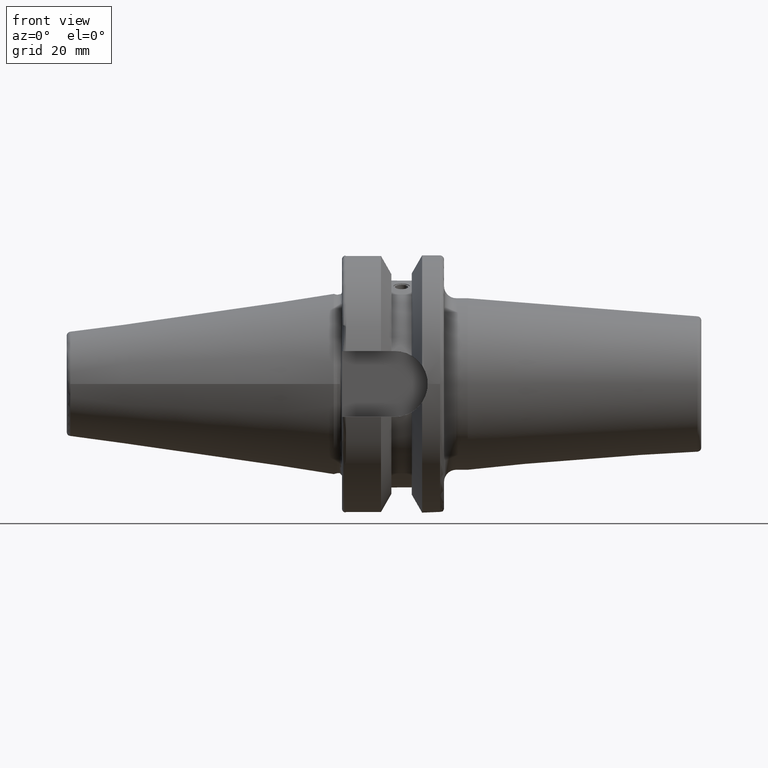
[diagram: clean part render]
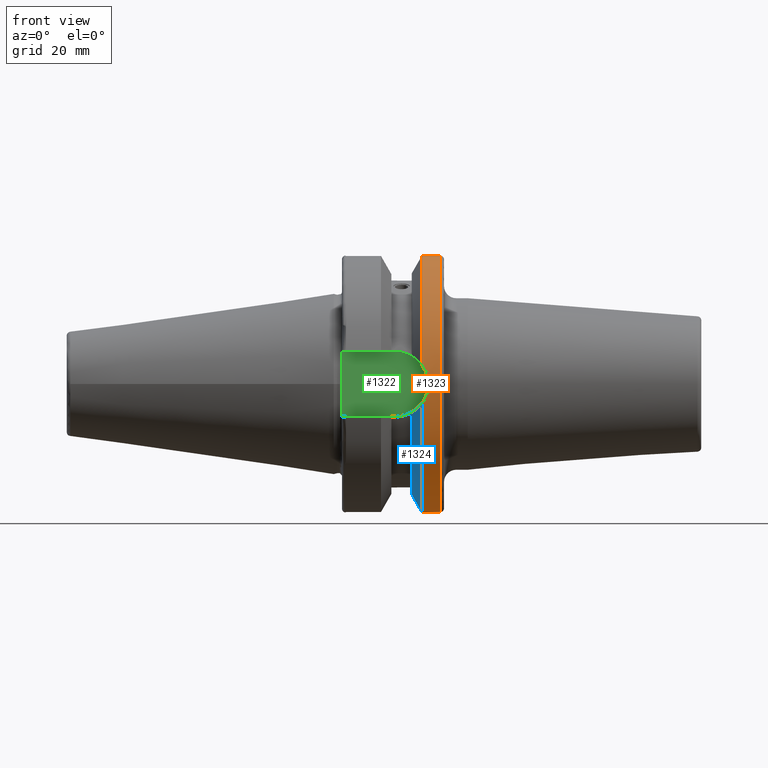
[diagram: same view with three faces highlighted in distinct colors, each labeled with its STEP entity id]
A machine part, front view with three faces highlighted in distinct colors.
Their STEP definitions:

[orange] entity #1323 — the highlighted cylindrical surface (bore or boss wall) has radius 31.5 mm, axis along (1, 0, 0).
#47=B_SPLINE_CURVE_WITH_KNOTS('',3,(#2363,#2364,#2365,#2366,#2367,#2368),
 .UNSPECIFIED.,.F.,.F.,(4,2,4),(1.21877751840372,1.52344857393281,1.67526011710938),
 .UNSPECIFIED.);
#48=B_SPLINE_CURVE_WITH_KNOTS('',3,(#2370,#2371,#2372,#2373,#2374,#2375),
 .UNSPECIFIED.,.F.,.F.,(4,2,4),(0.762294919698051,0.914106462874623,1.21877751840372),
 .UNSPECIFIED.);
#53=B_SPLINE_CURVE_WITH_KNOTS('',3,(#2459,#2460,#2461,#2462,#2463,#2464,
#2465,#2466,#2467,#2468),.UNSPECIFIED.,.F.,.F.,(4,2,2,2,4),(3.19984995650548,
3.35166149968206,3.65633255521115,3.96100361074024,4.11281515391681),
 .UNSPECIFIED.);
#79=CYLINDRICAL_SURFACE('',#1482,31.5);
#164=LINE('',#2455,#224);
#224=VECTOR('',#1823,31.5);
#295=FACE_OUTER_BOUND('',#374,.T.);
#374=EDGE_LOOP('',(#1088,#1089,#1090,#1091,#1092,#1093,#1094,#1095,#1096,
#1097));
#465=CIRCLE('',#1483,31.5);
#466=CIRCLE('',#1484,31.5);
#467=CIRCLE('',#1485,31.5);
#468=CIRCLE('',#1486,31.5);
#469=CIRCLE('',#1487,31.5);
#590=VERTEX_POINT('',#2355);
#591=VERTEX_POINT('',#2362);
#592=VERTEX_POINT('',#2369);
#610=VERTEX_POINT('',#2450);
#611=VERTEX_POINT('',#2451);
#612=VERTEX_POINT('',#2453);
#613=VERTEX_POINT('',#2456);
#614=VERTEX_POINT('',#2458);
#763=EDGE_CURVE('',#591,#590,#47,.T.);
#764=EDGE_CURVE('',#592,#591,#48,.T.);
#786=EDGE_CURVE('',#610,#611,#465,.T.);
#787=EDGE_CURVE('',#612,#610,#466,.T.);
#788=EDGE_CURVE('',#612,#591,#164,.T.);
#789=EDGE_CURVE('',#590,#613,#467,.T.);
#790=EDGE_CURVE('',#613,#614,#53,.T.);
#791=EDGE_CURVE('',#614,#592,#468,.T.);
#792=EDGE_CURVE('',#611,#612,#469,.T.);
#1088=ORIENTED_EDGE('',*,*,#786,.F.);
#1089=ORIENTED_EDGE('',*,*,#787,.F.);
#1090=ORIENTED_EDGE('',*,*,#788,.T.);
#1091=ORIENTED_EDGE('',*,*,#763,.T.);
#1092=ORIENTED_EDGE('',*,*,#789,.T.);
#1093=ORIENTED_EDGE('',*,*,#790,.T.);
#1094=ORIENTED_EDGE('',*,*,#791,.T.);
#1095=ORIENTED_EDGE('',*,*,#764,.T.);
#1096=ORIENTED_EDGE('',*,*,#788,.F.);
#1097=ORIENTED_EDGE('',*,*,#792,.F.);
#1323=ADVANCED_FACE('',(#295),#79,.T.);
#1482=AXIS2_PLACEMENT_3D('',#2449,#1817,#1818);
#1483=AXIS2_PLACEMENT_3D('',#2452,#1819,#1820);
#1484=AXIS2_PLACEMENT_3D('',#2454,#1821,#1822);
#1485=AXIS2_PLACEMENT_3D('',#2457,#1824,#1825);
#1486=AXIS2_PLACEMENT_3D('',#2469,#1826,#1827);
#1487=AXIS2_PLACEMENT_3D('',#2470,#1828,#1829);
#1817=DIRECTION('center_axis',(1.,0.,0.));
#1818=DIRECTION('ref_axis',(0.,1.,0.));
#1819=DIRECTION('center_axis',(1.,0.,0.));
#1820=DIRECTION('ref_axis',(0.,0.,-1.));
#1821=DIRECTION('center_axis',(1.,0.,0.));
#1822=DIRECTION('ref_axis',(0.,0.,-1.));
#1823=DIRECTION('',(-1.,0.,0.));
#1824=DIRECTION('center_axis',(1.,0.,0.));
#1825=DIRECTION('ref_axis',(0.,0.,-1.));
#1826=DIRECTION('center_axis',(1.,0.,0.));
#1827=DIRECTION('ref_axis',(0.,0.,-1.));
#1828=DIRECTION('center_axis',(1.,0.,0.));
#1829=DIRECTION('ref_axis',(0.,0.,-1.));
#2355=CARTESIAN_POINT('',(21.6309636926618,-31.1782420264945,-4.4907932637046));
#2362=CARTESIAN_POINT('',(23.,-31.5,-1.51248507442265E-15));
#2363=CARTESIAN_POINT('Ctrl Pts',(23.,-31.5,8.32667268468867E-16));
#2364=CARTESIAN_POINT('Ctrl Pts',(23.,-31.5,-1.01557018509698));
#2365=CARTESIAN_POINT('Ctrl Pts',(22.7961189876535,-31.445974204441,-2.09580170425552));
#2366=CARTESIAN_POINT('Ctrl Pts',(22.1796133812044,-31.2997625705024,-3.58065358198869));
#2367=CARTESIAN_POINT('Ctrl Pts',(21.92482980253,-31.2412125047166,-4.05360796141051));
#2368=CARTESIAN_POINT('Ctrl Pts',(21.6309636926618,-31.1782420264945,-4.4907932637046));
#2369=CARTESIAN_POINT('',(21.6309636926618,-31.1782420264945,4.4907932637046));
#2370=CARTESIAN_POINT('Ctrl Pts',(21.6309636926618,-31.1782420264945,4.4907932637046));
#2371=CARTESIAN_POINT('Ctrl Pts',(21.92482980253,-31.2412125047166,4.05360796141051));
#2372=CARTESIAN_POINT('Ctrl Pts',(22.1796133812044,-31.2997625705024,3.58065358198869));
#2373=CARTESIAN_POINT('Ctrl Pts',(22.7961189876535,-31.445974204441,2.09580170425552));
#2374=CARTESIAN_POINT('Ctrl Pts',(23.,-31.5,1.01557018509698));
#2375=CARTESIAN_POINT('Ctrl Pts',(23.,-31.5,-2.77555756156289E-16));
#2449=CARTESIAN_POINT('Origin',(23.8154818463309,0.,0.));
#2450=CARTESIAN_POINT('',(26.,31.5,0.));
#2451=CARTESIAN_POINT('',(26.,-3.85763741731416E-15,31.5));
#2452=CARTESIAN_POINT('Origin',(26.,0.,0.));
#2453=CARTESIAN_POINT('',(26.,-31.5,-3.85763741731416E-15));
#2454=CARTESIAN_POINT('Origin',(26.,0.,0.));
#2455=CARTESIAN_POINT('',(23.8154818463309,-31.5,-3.85763741731416E-15));
#2456=CARTESIAN_POINT('',(21.6309636926618,31.1782420264945,-4.4907932637046));
#2457=CARTESIAN_POINT('Origin',(21.6309636926618,0.,0.));
#2458=CARTESIAN_POINT('',(21.6309636926618,31.1782420264945,4.4907932637046));
#2459=CARTESIAN_POINT('Ctrl Pts',(21.6309636926618,31.1782420264945,-4.4907932637046));
#2460=CARTESIAN_POINT('Ctrl Pts',(21.92482980253,31.2412125047166,-4.05360796141051));
#2461=CARTESIAN_POINT('Ctrl Pts',(22.1796133812044,31.2997625705024,-3.58065358198869));
#2462=CARTESIAN_POINT('Ctrl Pts',(22.7961189876535,31.445974204441,-2.09580170425552));
#2463=CARTESIAN_POINT('Ctrl Pts',(23.,31.5,-1.01557018509698));
#2464=CARTESIAN_POINT('Ctrl Pts',(23.,31.5,1.01557018509698));
#2465=CARTESIAN_POINT('Ctrl Pts',(22.7961189876535,31.445974204441,2.09580170425552));
#2466=CARTESIAN_POINT('Ctrl Pts',(22.1796133812044,31.2997625705024,3.58065358198869));
#2467=CARTESIAN_POINT('Ctrl Pts',(21.92482980253,31.2412125047166,4.05360796141051));
#2468=CARTESIAN_POINT('Ctrl Pts',(21.6309636926618,31.1782420264945,4.4907932637046));
#2469=CARTESIAN_POINT('Origin',(21.6309636926618,0.,0.));
#2470=CARTESIAN_POINT('Origin',(26.,0.,0.));

[blue] entity #1324 — the highlighted conical surface has half-angle 60.125 deg.
#46=B_SPLINE_CURVE_WITH_KNOTS('',3,(#2356,#2357,#2358,#2359,#2360,#2361),
 .UNSPECIFIED.,.F.,.F.,(4,2,4),(3.12975744792547,3.62699288756974,3.70848737461386),
 .UNSPECIFIED.);
#54=B_SPLINE_CURVE_WITH_KNOTS('',3,(#2474,#2475,#2476,#2477,#2478,#2479),
 .UNSPECIFIED.,.F.,.F.,(4,2,4),(1.4642102789956,1.54570476603972,2.04294020568399),
 .UNSPECIFIED.);
#251=CONICAL_SURFACE('',#1488,29.2970358274569,1.0493792127616);
#296=FACE_OUTER_BOUND('',#375,.T.);
#375=EDGE_LOOP('',(#1098,#1099,#1100,#1101));
#467=CIRCLE('',#1485,31.5);
#470=CIRCLE('',#1489,27.0940716549138);
#589=VERTEX_POINT('',#2353);
#590=VERTEX_POINT('',#2355);
#613=VERTEX_POINT('',#2456);
#615=VERTEX_POINT('',#2472);
#762=EDGE_CURVE('',#590,#589,#46,.T.);
#789=EDGE_CURVE('',#590,#613,#467,.T.);
#793=EDGE_CURVE('',#589,#615,#470,.T.);
#794=EDGE_CURVE('',#615,#613,#54,.T.);
#1098=ORIENTED_EDGE('',*,*,#762,.T.);
#1099=ORIENTED_EDGE('',*,*,#793,.T.);
#1100=ORIENTED_EDGE('',*,*,#794,.T.);
#1101=ORIENTED_EDGE('',*,*,#789,.F.);
#1324=ADVANCED_FACE('',(#296),#251,.T.);
#1485=AXIS2_PLACEMENT_3D('',#2457,#1824,#1825);
#1488=AXIS2_PLACEMENT_3D('',#2471,#1830,#1831);
#1489=AXIS2_PLACEMENT_3D('',#2473,#1832,#1833);
#1824=DIRECTION('center_axis',(1.,0.,0.));
#1825=DIRECTION('ref_axis',(0.,0.,-1.));
#1830=DIRECTION('center_axis',(1.,0.,0.));
#1831=DIRECTION('ref_axis',(0.,1.,0.));
#1832=DIRECTION('center_axis',(1.,0.,0.));
#1833=DIRECTION('ref_axis',(0.,0.,-1.));
#2353=CARTESIAN_POINT('',(19.1,-26.201311395455,-6.89782574439221));
#2355=CARTESIAN_POINT('',(21.6309636926618,-31.1782420264945,-4.4907932637046));
#2356=CARTESIAN_POINT('Ctrl Pts',(21.6309636926618,-31.1782420264945,-4.4907932637046));
#2357=CARTESIAN_POINT('Ctrl Pts',(20.9728756148303,-29.8797957262939,-5.46983244373115));
#2358=CARTESIAN_POINT('Ctrl Pts',(20.1784155384866,-28.3157123387484,-6.18231368976925));
#2359=CARTESIAN_POINT('Ctrl Pts',(19.3406963650697,-26.6728819297428,-6.74867108656039));
#2360=CARTESIAN_POINT('Ctrl Pts',(19.2210929544554,-26.4384736933511,-6.82497151762395));
#2361=CARTESIAN_POINT('Ctrl Pts',(19.1,-26.201311395455,-6.89782574439221));
#2456=CARTESIAN_POINT('',(21.6309636926618,31.1782420264945,-4.4907932637046));
#2457=CARTESIAN_POINT('Origin',(21.6309636926618,0.,0.));
#2471=CARTESIAN_POINT('Origin',(20.3654818463309,0.,0.));
#2472=CARTESIAN_POINT('',(19.1,26.201311395455,-6.89782574439221));
#2473=CARTESIAN_POINT('Origin',(19.1,0.,0.));
#2474=CARTESIAN_POINT('Ctrl Pts',(19.1,26.201311395455,-6.89782574439221));
#2475=CARTESIAN_POINT('Ctrl Pts',(19.2210929544554,26.438473693351,-6.82497151762395));
#2476=CARTESIAN_POINT('Ctrl Pts',(19.3406963650697,26.6728819297428,-6.74867108656039));
#2477=CARTESIAN_POINT('Ctrl Pts',(20.1784155384866,28.3157123387484,-6.18231368976925));
#2478=CARTESIAN_POINT('Ctrl Pts',(20.9728756148303,29.8797957262939,-5.46983244373115));
#2479=CARTESIAN_POINT('Ctrl Pts',(21.6309636926618,31.1782420264945,-4.4907932637046));

[green] entity #1322 — the highlighted planar face has unit normal (0, 1, 0).
#115=PLANE('',#1481);
#157=LINE('',#2421,#217);
#159=LINE('',#2426,#219);
#163=LINE('',#2448,#223);
#217=VECTOR('',#1806,10.);
#219=VECTOR('',#1810,10.);
#223=VECTOR('',#1816,10.);
#294=FACE_OUTER_BOUND('',#373,.T.);
#373=EDGE_LOOP('',(#1084,#1085,#1086,#1087));
#464=CIRCLE('',#1478,8.05);
#596=VERTEX_POINT('',#2392);
#597=VERTEX_POINT('',#2394);
#603=VERTEX_POINT('',#2419);
#605=VERTEX_POINT('',#2425);
#769=EDGE_CURVE('',#596,#597,#464,.T.);
#777=EDGE_CURVE('',#603,#596,#157,.T.);
#779=EDGE_CURVE('',#597,#605,#159,.T.);
#785=EDGE_CURVE('',#605,#603,#163,.T.);
#1084=ORIENTED_EDGE('',*,*,#779,.F.);
#1085=ORIENTED_EDGE('',*,*,#769,.F.);
#1086=ORIENTED_EDGE('',*,*,#777,.F.);
#1087=ORIENTED_EDGE('',*,*,#785,.F.);
#1322=ADVANCED_FACE('',(#294),#115,.F.);
#1478=AXIS2_PLACEMENT_3D('',#2395,#1797,#1798);
#1481=AXIS2_PLACEMENT_3D('',#2447,#1814,#1815);
#1797=DIRECTION('center_axis',(0.,1.,0.));
#1798=DIRECTION('ref_axis',(0.,0.,1.));
#1806=DIRECTION('',(1.,0.,8.57315076930623E-17));
#1810=DIRECTION('',(-1.,0.,-8.57315076930623E-17));
#1814=DIRECTION('center_axis',(0.,1.,0.));
#1815=DIRECTION('ref_axis',(0.,0.,1.));
#1816=DIRECTION('',(0.,0.,1.));
#2392=CARTESIAN_POINT('',(14.95,-22.6,8.05));
#2394=CARTESIAN_POINT('',(14.95,-22.6,-8.05));
#2395=CARTESIAN_POINT('Origin',(14.95,-22.6,0.));
#2419=CARTESIAN_POINT('',(1.99999999999999,-22.6,8.05));
#2421=CARTESIAN_POINT('',(1.99999999999999,-22.6,8.05));
#2425=CARTESIAN_POINT('',(1.99999999999999,-22.6,-8.05));
#2426=CARTESIAN_POINT('',(14.95,-22.6,-8.05));
#2447=CARTESIAN_POINT('Origin',(12.5,-22.6,0.));
#2448=CARTESIAN_POINT('',(1.99999999999999,-22.6,0.));